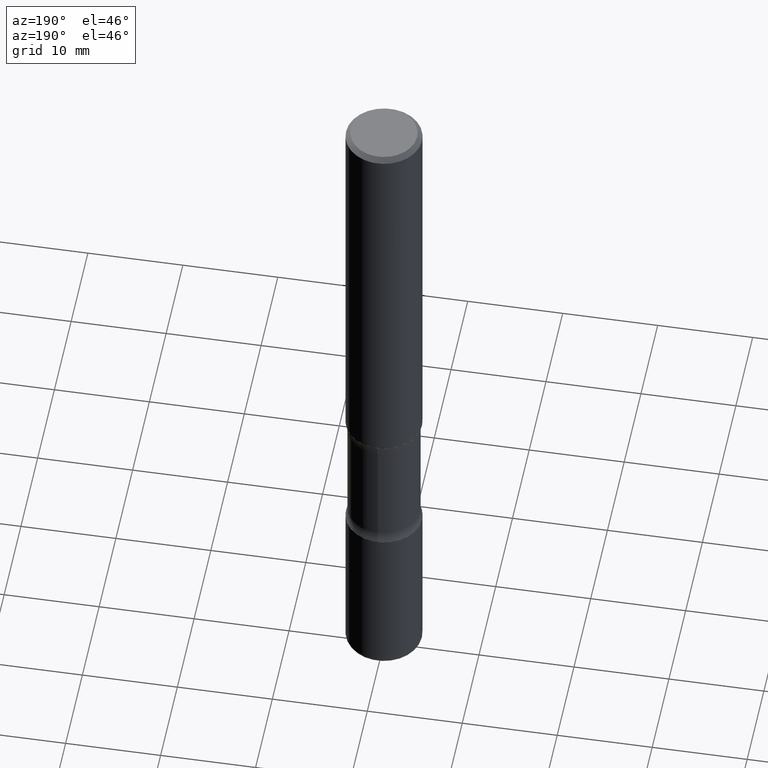
[diagram: clean part render]
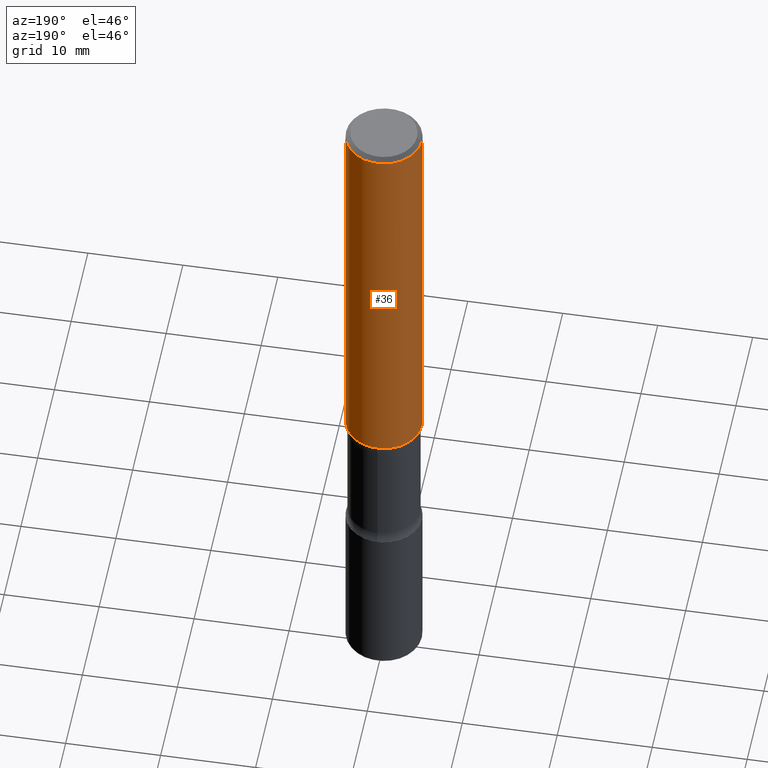
[diagram: same view with one face highlighted and labeled with its STEP entity id]
A machine part, auxiliary view. The second image highlights one B-rep face of the part: STEP entity #36.
In plain terms, the highlighted cylindrical surface (partial cylindrical patch) has radius 4.0005 mm, axis along (-0, 0, 1).
Its self-contained STEP definition (entity closure, byte-faithful):
#6 = CARTESIAN_POINT ( 'NONE',  ( -0.1575000000000000011, 1.119104808822157801E-15, -7.747322767151475583E-30 ) ) ;
#26 = AXIS2_PLACEMENT_3D ( 'NONE', #169, #334, #254 ) ;
#35 = CARTESIAN_POINT ( 'NONE',  ( -0.1575000000000000844, -1.871348957896992789E-15, -1.692999999999999616 ) ) ;
#36 = ADVANCED_FACE ( 'NONE', ( #84 ), #501, .T. ) ;
#37 = VERTEX_POINT ( 'NONE', #210 ) ;
#63 = DIRECTION ( 'NONE',  ( 1.000000000000000000, -6.982962677686264344E-15, 0.000000000000000000 ) ) ;
#84 = FACE_OUTER_BOUND ( 'NONE', #189, .T. ) ;
#102 = VECTOR ( 'NONE', #145, 39.37007874015748143 ) ;
#105 = LINE ( 'NONE', #425, #396 ) ;
#107 = EDGE_CURVE ( 'NONE', #274, #270, #280, .T. ) ;
#113 = ORIENTED_EDGE ( 'NONE', *, *, #487, .T. ) ;
#121 = EDGE_CURVE ( 'NONE', #274, #447, #105, .T. ) ;
#145 = DIRECTION ( 'NONE',  ( -2.445468806185136877E-29, 3.491481338843145188E-15, 1.000000000000000000 ) ) ;
#146 = EDGE_CURVE ( 'NONE', #447, #37, #296, .T. ) ;
#169 = CARTESIAN_POINT ( 'NONE',  ( 0.000000000000000000, 0.000000000000000000, 0.000000000000000000 ) ) ;
#186 = DIRECTION ( 'NONE',  ( -2.445468806185136597E-29, 3.491481338843145583E-15, 1.000000000000000000 ) ) ;
#188 = LINE ( 'NONE', #6, #102 ) ;
#189 = EDGE_LOOP ( 'NONE', ( #323, #113, #444, #322 ) ) ;
#210 = CARTESIAN_POINT ( 'NONE',  ( -0.1574999999999998901, 1.029986994958723196E-15, -0.02000000000000000042 ) ) ;
#254 = DIRECTION ( 'NONE',  ( 1.000000000000000000, -6.982962677686265922E-15, 4.876176775795935232E-29 ) ) ;
#258 = DIRECTION ( 'NONE',  ( -2.445468806185136877E-29, 3.491481338843145188E-15, 1.000000000000000000 ) ) ;
#261 = CARTESIAN_POINT ( 'NONE',  ( 4.890937612370273159E-31, -6.982962677686291609E-17, -0.02000000000000000042 ) ) ;
#262 = AXIS2_PLACEMENT_3D ( 'NONE', #351, #519, #63 ) ;
#270 = VERTEX_POINT ( 'NONE', #35 ) ;
#274 = VERTEX_POINT ( 'NONE', #512 ) ;
#280 = CIRCLE ( 'NONE', #262, 0.1575000000000000844 ) ;
#296 = CIRCLE ( 'NONE', #324, 0.1574999999999998901 ) ;
#322 = ORIENTED_EDGE ( 'NONE', *, *, #121, .F. ) ;
#323 = ORIENTED_EDGE ( 'NONE', *, *, #107, .T. ) ;
#324 = AXIS2_PLACEMENT_3D ( 'NONE', #261, #186, #556 ) ;
#334 = DIRECTION ( 'NONE',  ( -2.445468806185136597E-29, 3.491481338843145583E-15, 1.000000000000000000 ) ) ;
#351 = CARTESIAN_POINT ( 'NONE',  ( 4.140178688871434900E-29, -5.911077906661444587E-15, -1.692999999999999616 ) ) ;
#396 = VECTOR ( 'NONE', #258, 39.37007874015748143 ) ;
#425 = CARTESIAN_POINT ( 'NONE',  ( 0.1575000000000000011, -1.099816621735586889E-15, 7.679978421878598033E-30 ) ) ;
#444 = ORIENTED_EDGE ( 'NONE', *, *, #146, .F. ) ;
#447 = VERTEX_POINT ( 'NONE', #516 ) ;
#487 = EDGE_CURVE ( 'NONE', #270, #37, #188, .T. ) ;
#501 = CYLINDRICAL_SURFACE ( 'NONE', #26, 0.1575000000000000011 ) ;
#512 = CARTESIAN_POINT ( 'NONE',  ( 0.1575000000000000844, -7.010894528397031278E-15, -1.692999999999999616 ) ) ;
#516 = CARTESIAN_POINT ( 'NONE',  ( 0.1574999999999998901, -1.150358061425878289E-15, -0.02000000000000000042 ) ) ;
#519 = DIRECTION ( 'NONE',  ( -2.445468806185136597E-29, 3.491481338843145583E-15, 1.000000000000000000 ) ) ;
#556 = DIRECTION ( 'NONE',  ( 1.000000000000000000, -6.982962677686266711E-15, 0.000000000000000000 ) ) ;